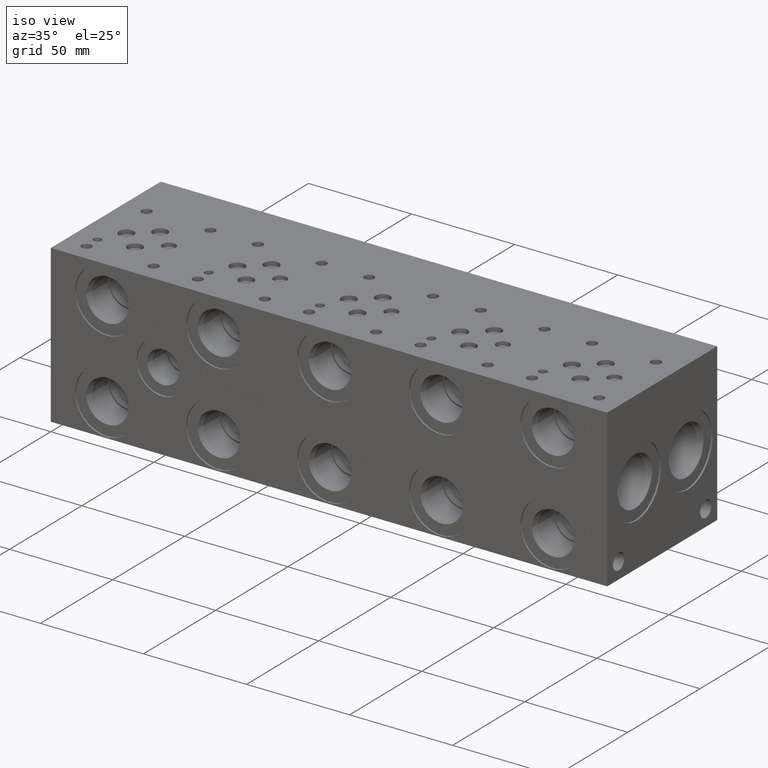
[diagram: clean part render]
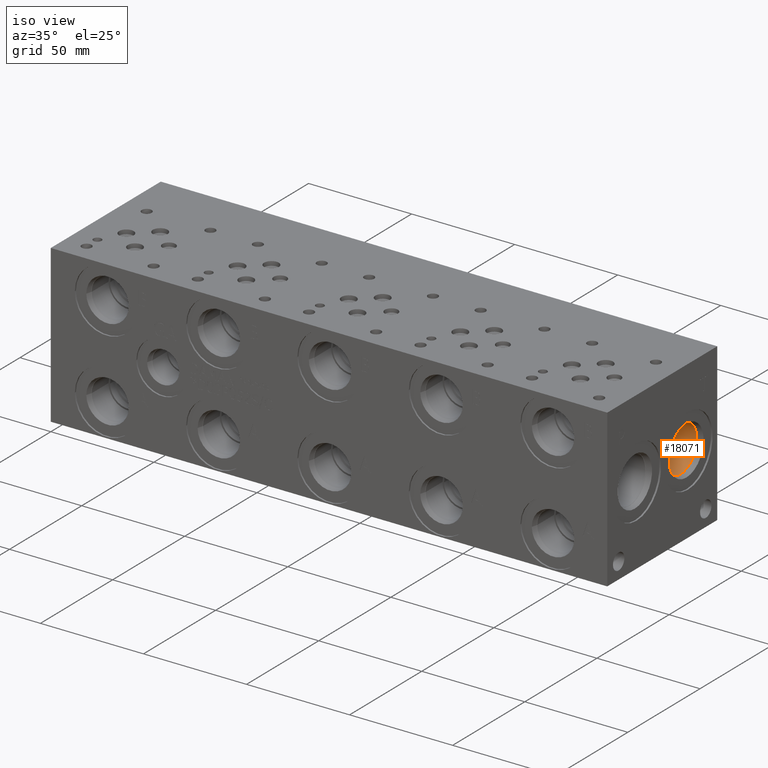
[diagram: same view with one face highlighted and labeled with its STEP entity id]
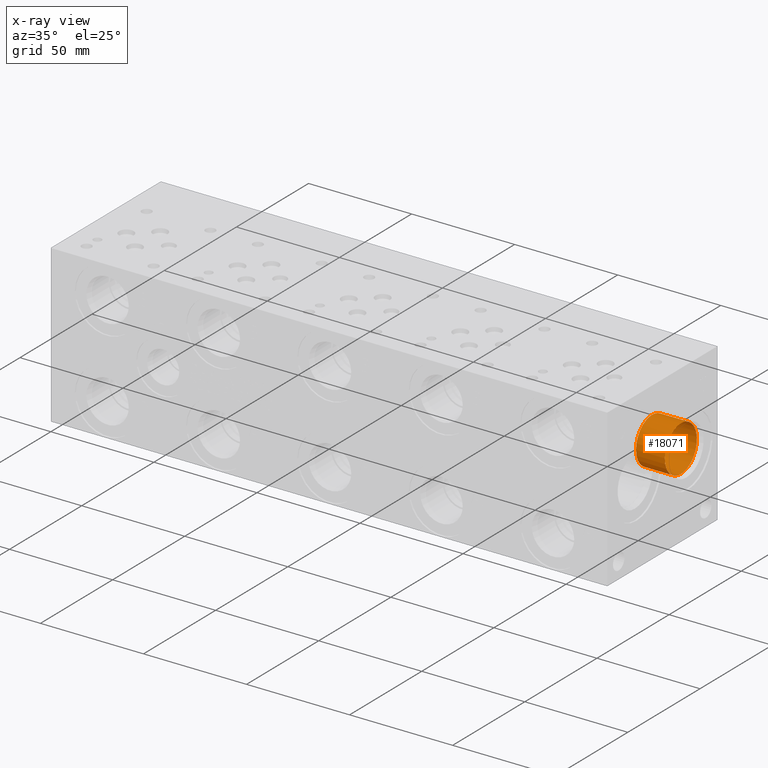
[diagram: x-ray of the same camera — body ghosted, the highlighted face saturated]
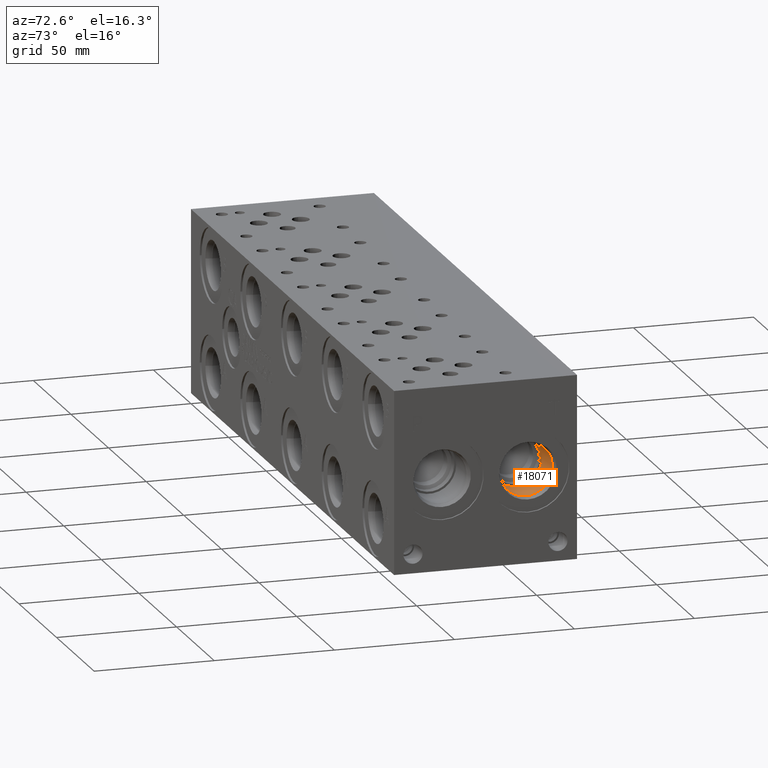
[diagram: same view with one face highlighted and labeled with its STEP entity id]
A machine part, iso view. The second image highlights one B-rep face of the part: STEP entity #18071.
The next image is the same camera in x-ray: the body ghosted, the highlighted face saturated — about 0% of this face is hidden behind the body in this view.
A second angle (auxiliary view) of the same face is appended — the face is thin or edge-on in the first view.
In plain terms, the highlighted cylindrical surface (bore or boss wall) has radius 11.115 mm, axis along (1, 0, 0).
Its self-contained STEP definition (entity closure, byte-faithful):
#140=CYLINDRICAL_SURFACE('',#18911,11.115);
#354=CIRCLE('',#18881,11.115);
#355=CIRCLE('',#18882,11.115);
#371=CIRCLE('',#18908,11.115);
#372=CIRCLE('',#18909,11.115);
#2371=FACE_OUTER_BOUND('',#3413,.T.);
#3413=EDGE_LOOP('',(#14799,#14800,#14801,#14802,#14803,#14804));
#5097=LINE('',#30486,#6629);
#6629=VECTOR('',#22041,11.115);
#8089=VERTEX_POINT('',#30424);
#8090=VERTEX_POINT('',#30426);
#8108=VERTEX_POINT('',#30479);
#8109=VERTEX_POINT('',#30480);
#10459=EDGE_CURVE('',#8090,#8089,#354,.T.);
#10460=EDGE_CURVE('',#8089,#8090,#355,.T.);
#10484=EDGE_CURVE('',#8108,#8109,#371,.T.);
#10485=EDGE_CURVE('',#8109,#8108,#372,.T.);
#10487=EDGE_CURVE('',#8090,#8109,#5097,.T.);
#14799=ORIENTED_EDGE('',*,*,#10459,.T.);
#14800=ORIENTED_EDGE('',*,*,#10460,.T.);
#14801=ORIENTED_EDGE('',*,*,#10487,.T.);
#14802=ORIENTED_EDGE('',*,*,#10484,.F.);
#14803=ORIENTED_EDGE('',*,*,#10485,.F.);
#14804=ORIENTED_EDGE('',*,*,#10487,.F.);
#18071=ADVANCED_FACE('',(#2371),#140,.F.);
#18881=AXIS2_PLACEMENT_3D('',#30427,#21971,#21972);
#18882=AXIS2_PLACEMENT_3D('',#30428,#21973,#21974);
#18908=AXIS2_PLACEMENT_3D('',#30481,#22033,#22034);
#18909=AXIS2_PLACEMENT_3D('',#30482,#22035,#22036);
#18911=AXIS2_PLACEMENT_3D('',#30485,#22039,#22040);
#21971=DIRECTION('center_axis',(1.,0.,0.));
#21972=DIRECTION('ref_axis',(0.,1.,0.));
#21973=DIRECTION('center_axis',(1.,0.,0.));
#21974=DIRECTION('ref_axis',(0.,1.,0.));
#22033=DIRECTION('center_axis',(1.,0.,0.));
#22034=DIRECTION('ref_axis',(0.,1.,0.));
#22035=DIRECTION('center_axis',(1.,0.,0.));
#22036=DIRECTION('ref_axis',(0.,1.,0.));
#22039=DIRECTION('center_axis',(1.,0.,0.));
#22040=DIRECTION('ref_axis',(0.,1.,0.));
#22041=DIRECTION('',(-1.,0.,0.));
#30424=CARTESIAN_POINT('',(266.5374,55.9562,49.215));
#30426=CARTESIAN_POINT('',(266.5374,44.8412,38.1));
#30427=CARTESIAN_POINT('Origin',(266.5374,55.9562,38.1));
#30428=CARTESIAN_POINT('Origin',(266.5374,55.9562,38.1));
#30479=CARTESIAN_POINT('',(252.5522,67.0712,38.1));
#30480=CARTESIAN_POINT('',(252.5522,44.8412,38.1));
#30481=CARTESIAN_POINT('Origin',(252.5522,55.9562,38.1));
#30482=CARTESIAN_POINT('Origin',(252.5522,55.9562,38.1));
#30485=CARTESIAN_POINT('Origin',(261.2771,55.9562,38.1));
#30486=CARTESIAN_POINT('',(261.2771,44.8412,38.1));